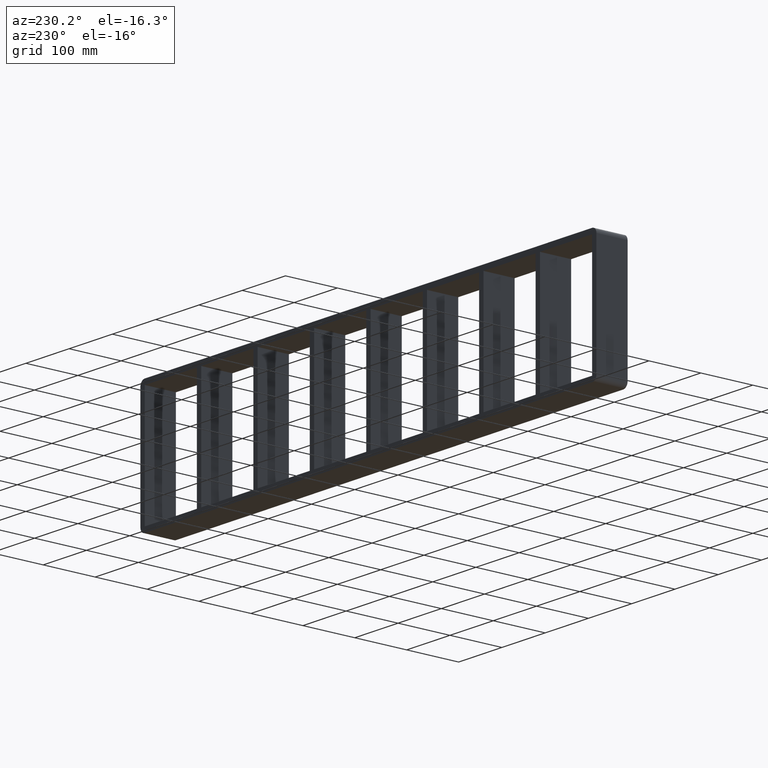
[diagram: clean part render]
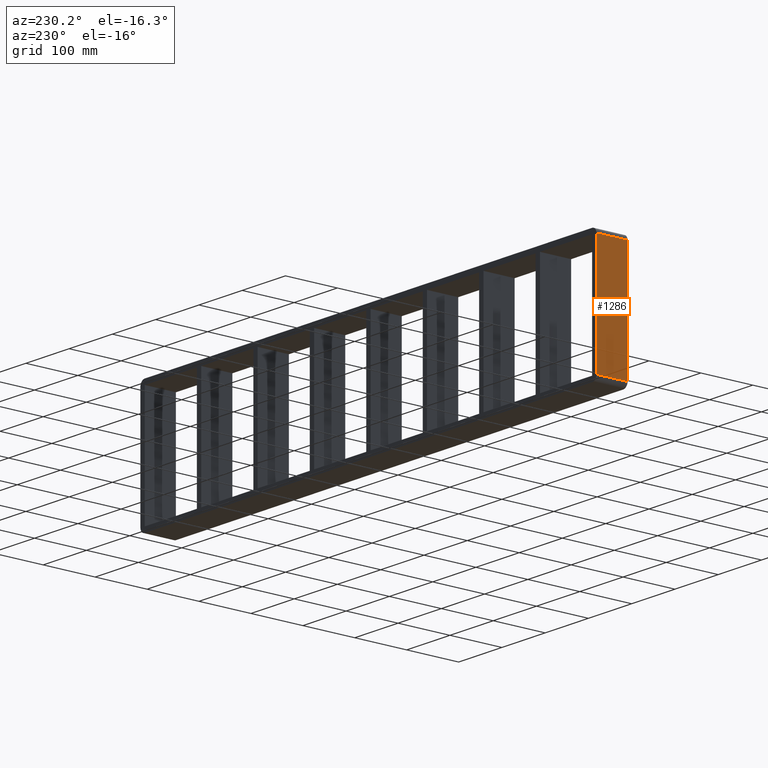
[diagram: same view with one face highlighted and labeled with its STEP entity id]
A machine part, auxiliary view. The second image highlights one B-rep face of the part: STEP entity #1286.
In plain terms, the highlighted planar face has unit normal (-1, 0, 0).
Its self-contained STEP definition (entity closure, byte-faithful):
#1089=CARTESIAN_POINT('',(-527.0,-3.0,108.99999999999999));
#1090=VERTEX_POINT('',#1089);
#1098=CARTESIAN_POINT('',(-527.0,-3.0,-109.00000000000003));
#1099=VERTEX_POINT('',#1098);
#1100=CARTESIAN_POINT('',(-527.0,-3.0,108.99999999999997));
#1101=DIRECTION('',(0.0,0.0,-1.0));
#1102=VECTOR('',#1101,218.0);
#1103=LINE('',#1100,#1102);
#1104=EDGE_CURVE('',#1090,#1099,#1103,.T.);
#1236=CARTESIAN_POINT('',(-527.0,57.0,-109.00000000000003));
#1237=VERTEX_POINT('',#1236);
#1254=CARTESIAN_POINT('',(-527.0,-3.0,-109.00000000000003));
#1255=DIRECTION('',(0.0,1.0,0.0));
#1256=VECTOR('',#1255,60.0);
#1257=LINE('',#1254,#1256);
#1258=EDGE_CURVE('',#1099,#1237,#1257,.T.);
#1263=CARTESIAN_POINT('',(-527.0,0.0,-119.00000000000003));
#1264=DIRECTION('',(-1.0,0.0,0.0));
#1265=DIRECTION('',(0.0,0.0,1.0));
#1266=AXIS2_PLACEMENT_3D('',#1263,#1264,#1265);
#1267=PLANE('',#1266);
#1268=ORIENTED_EDGE('',*,*,#1258,.F.);
#1269=ORIENTED_EDGE('',*,*,#1104,.F.);
#1270=CARTESIAN_POINT('',(-527.0,57.0,108.99999999999999));
#1271=VERTEX_POINT('',#1270);
#1272=CARTESIAN_POINT('',(-527.0,57.0,108.99999999999999));
#1273=DIRECTION('',(0.0,-1.0,0.0));
#1274=VECTOR('',#1273,60.0);
#1275=LINE('',#1272,#1274);
#1276=EDGE_CURVE('',#1271,#1090,#1275,.T.);
#1277=ORIENTED_EDGE('',*,*,#1276,.F.);
#1278=CARTESIAN_POINT('',(-527.0,57.0,-109.00000000000003));
#1279=DIRECTION('',(0.0,0.0,1.0));
#1280=VECTOR('',#1279,218.0);
#1281=LINE('',#1278,#1280);
#1282=EDGE_CURVE('',#1237,#1271,#1281,.T.);
#1283=ORIENTED_EDGE('',*,*,#1282,.F.);
#1284=EDGE_LOOP('',(#1268,#1269,#1277,#1283));
#1285=FACE_OUTER_BOUND('',#1284,.T.);
#1286=ADVANCED_FACE('',(#1285),#1267,.T.);